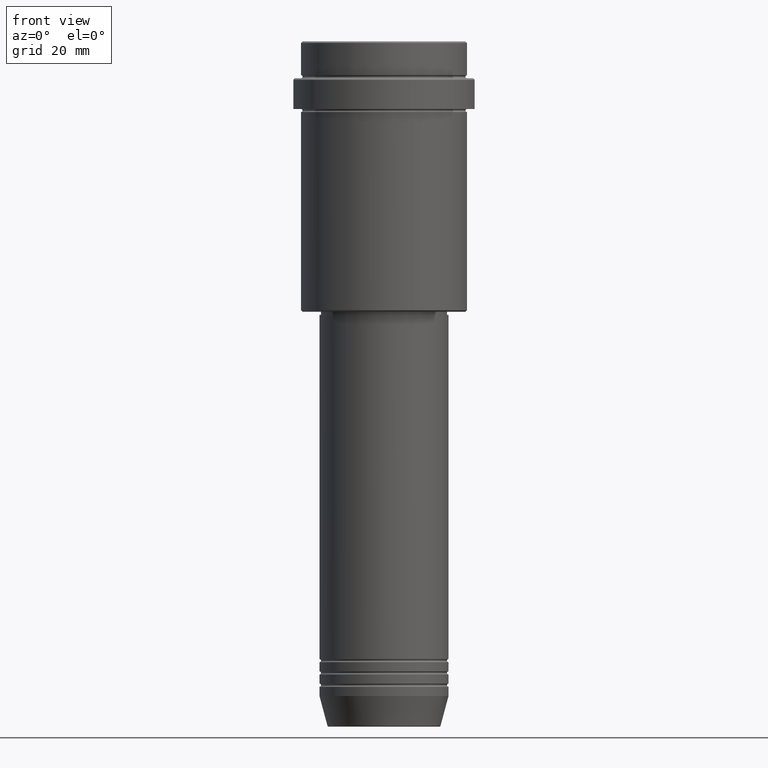
[diagram: clean part render]
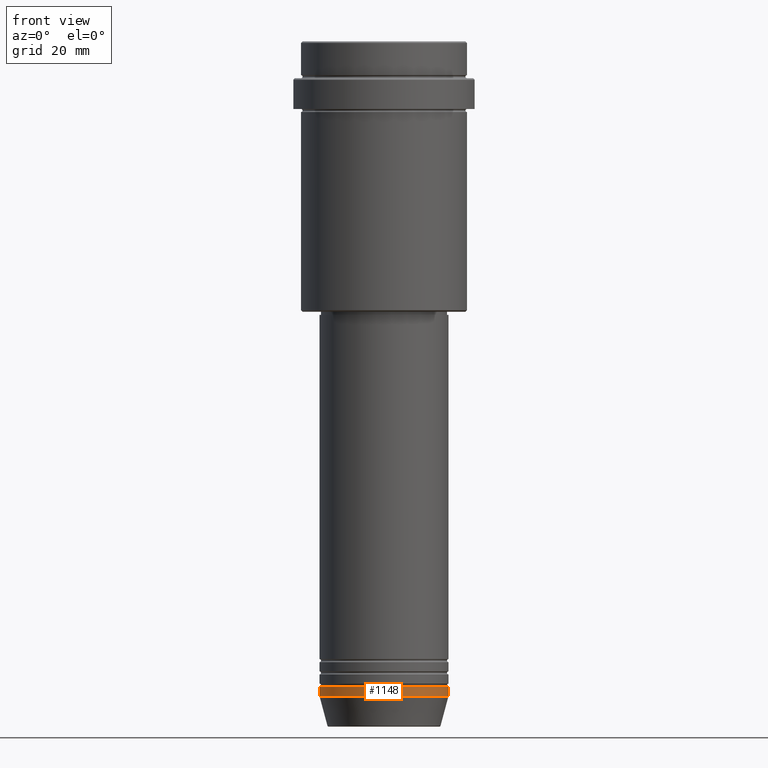
[diagram: same view with one face highlighted and labeled with its STEP entity id]
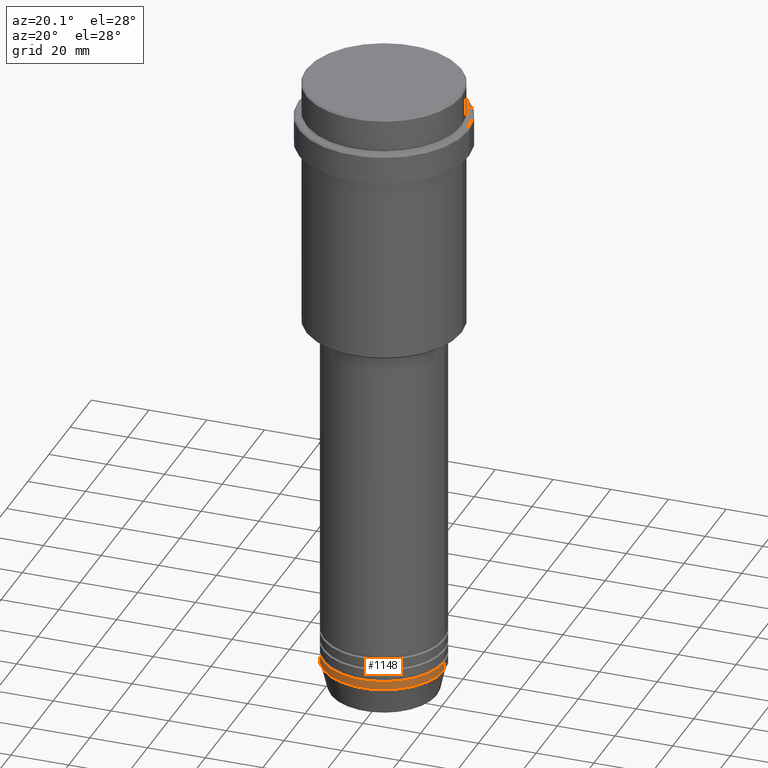
[diagram: same view with one face highlighted and labeled with its STEP entity id]
A machine part, front view. The second image highlights one B-rep face of the part: STEP entity #1148.
A second angle (auxiliary view) of the same face is appended — the face is thin or edge-on in the first view.
In plain terms, the highlighted cylindrical surface (partial cylindrical patch) has radius 21 mm, axis along (-0, -0, 1).
Its self-contained STEP definition (entity closure, byte-faithful):
#22 = EDGE_CURVE ( 'NONE', #302, #444, #1338, .T. ) ;
#77 = ORIENTED_EDGE ( 'NONE', *, *, #99, .T. ) ;
#99 = EDGE_CURVE ( 'NONE', #444, #1330, #270, .T. ) ;
#270 = LINE ( 'NONE', #615, #1042 ) ;
#276 = EDGE_CURVE ( 'NONE', #342, #1330, #799, .T. ) ;
#302 = VERTEX_POINT ( 'NONE', #359 ) ;
#315 = CARTESIAN_POINT ( 'NONE',  ( 0.000000000000000000, 0.000000000000000000, 0.000000000000000000 ) ) ;
#316 = CARTESIAN_POINT ( 'NONE',  ( 21.00000000000000000, 0.000000000000000000, -213.0000000000000284 ) ) ;
#341 = DIRECTION ( 'NONE',  ( -0.000000000000000000, -0.000000000000000000, 1.000000000000000000 ) ) ;
#342 = VERTEX_POINT ( 'NONE', #960 ) ;
#359 = CARTESIAN_POINT ( 'NONE',  ( -21.00000000000000000, 2.571758278209441661E-15, -213.0000000000000284 ) ) ;
#365 = DIRECTION ( 'NONE',  ( 1.000000000000000000, 0.000000000000000000, 0.000000000000000000 ) ) ;
#370 = DIRECTION ( 'NONE',  ( -0.000000000000000000, -0.000000000000000000, 1.000000000000000000 ) ) ;
#444 = VERTEX_POINT ( 'NONE', #316 ) ;
#459 = CARTESIAN_POINT ( 'NONE',  ( 0.000000000000000000, 0.000000000000000000, -210.0000000000000284 ) ) ;
#468 = CARTESIAN_POINT ( 'NONE',  ( 21.00000000000000000, 0.000000000000000000, -210.0000000000000284 ) ) ;
#517 = AXIS2_PLACEMENT_3D ( 'NONE', #459, #370, #365 ) ;
#550 = FACE_OUTER_BOUND ( 'NONE', #737, .T. ) ;
#615 = CARTESIAN_POINT ( 'NONE',  ( 21.00000000000000000, 0.000000000000000000, 0.000000000000000000 ) ) ;
#651 = DIRECTION ( 'NONE',  ( -0.000000000000000000, -0.000000000000000000, 1.000000000000000000 ) ) ;
#661 = ORIENTED_EDGE ( 'NONE', *, *, #22, .T. ) ;
#679 = LINE ( 'NONE', #1353, #1147 ) ;
#737 = EDGE_LOOP ( 'NONE', ( #1385, #661, #77, #1118 ) ) ;
#765 = DIRECTION ( 'NONE',  ( 1.000000000000000000, 0.000000000000000000, 0.000000000000000000 ) ) ;
#781 = DIRECTION ( 'NONE',  ( 1.000000000000000000, 0.000000000000000000, 0.000000000000000000 ) ) ;
#799 = CIRCLE ( 'NONE', #517, 21.00000000000000000 ) ;
#904 = DIRECTION ( 'NONE',  ( -0.000000000000000000, -0.000000000000000000, 1.000000000000000000 ) ) ;
#934 = AXIS2_PLACEMENT_3D ( 'NONE', #1179, #651, #765 ) ;
#960 = CARTESIAN_POINT ( 'NONE',  ( -21.00000000000000000, 2.571758278209441661E-15, -210.0000000000000284 ) ) ;
#993 = CYLINDRICAL_SURFACE ( 'NONE', #1320, 21.00000000000000000 ) ;
#1042 = VECTOR ( 'NONE', #1264, 1000.000000000000000 ) ;
#1118 = ORIENTED_EDGE ( 'NONE', *, *, #276, .F. ) ;
#1147 = VECTOR ( 'NONE', #904, 1000.000000000000000 ) ;
#1148 = ADVANCED_FACE ( 'NONE', ( #550 ), #993, .T. ) ;
#1179 = CARTESIAN_POINT ( 'NONE',  ( 0.000000000000000000, 0.000000000000000000, -213.0000000000000284 ) ) ;
#1264 = DIRECTION ( 'NONE',  ( -0.000000000000000000, -0.000000000000000000, 1.000000000000000000 ) ) ;
#1320 = AXIS2_PLACEMENT_3D ( 'NONE', #315, #341, #781 ) ;
#1330 = VERTEX_POINT ( 'NONE', #468 ) ;
#1338 = CIRCLE ( 'NONE', #934, 21.00000000000000000 ) ;
#1353 = CARTESIAN_POINT ( 'NONE',  ( -21.00000000000000000, 2.571758278209441661E-15, 0.000000000000000000 ) ) ;
#1373 = EDGE_CURVE ( 'NONE', #302, #342, #679, .T. ) ;
#1385 = ORIENTED_EDGE ( 'NONE', *, *, #1373, .F. ) ;